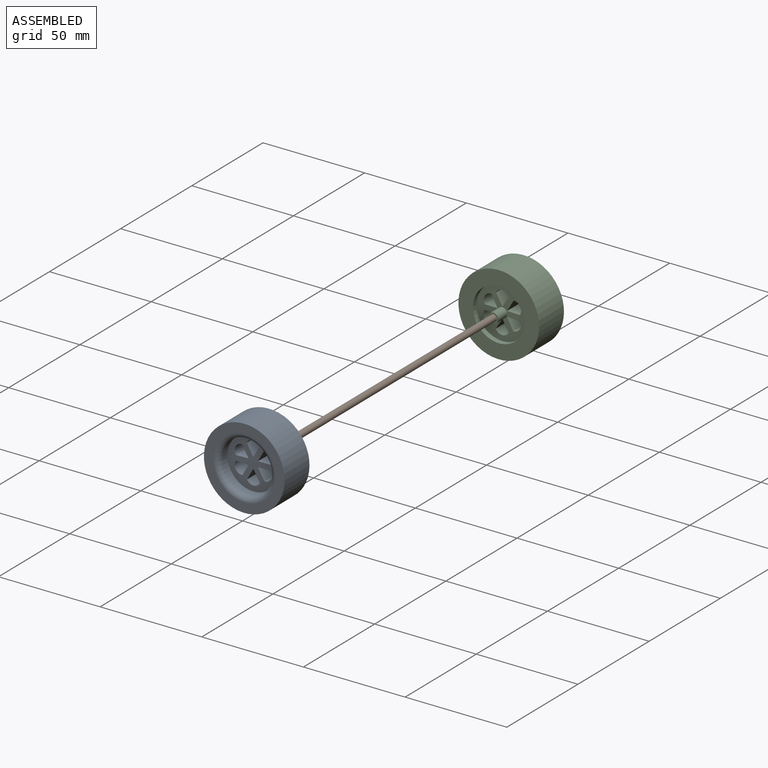
[diagram: assembled view]
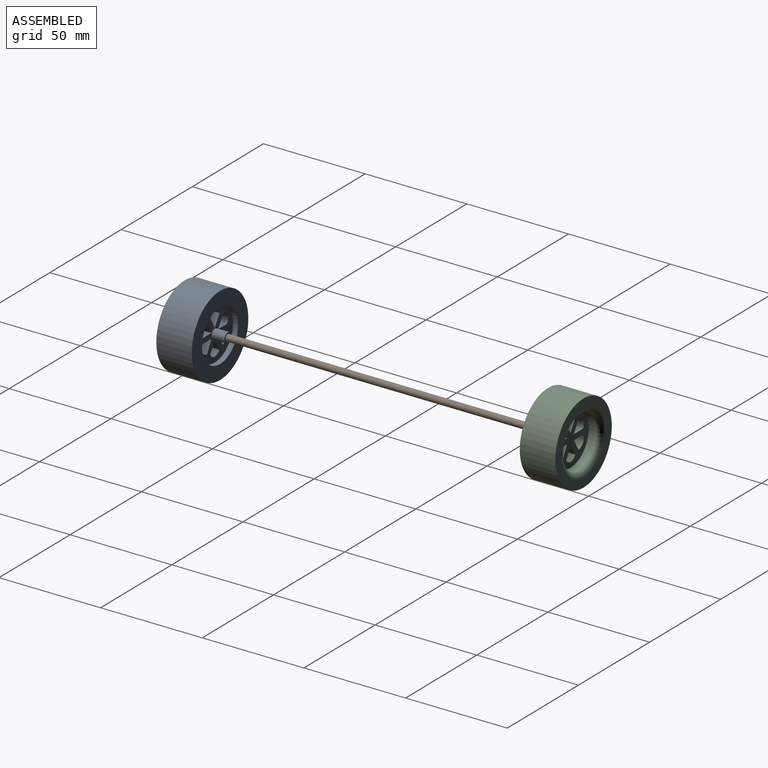
[diagram: assembled view, second angle]
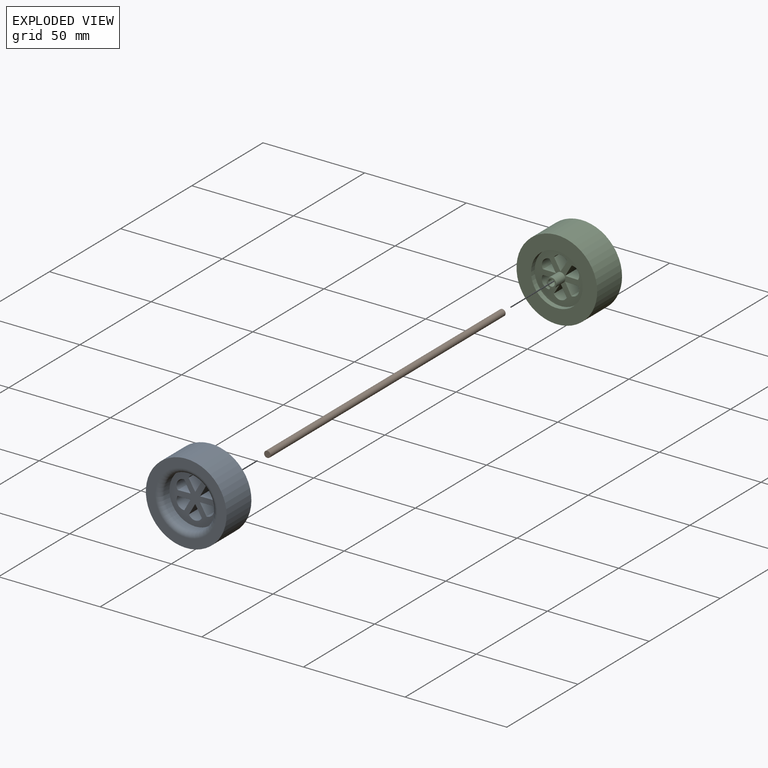
[diagram: exploded view]
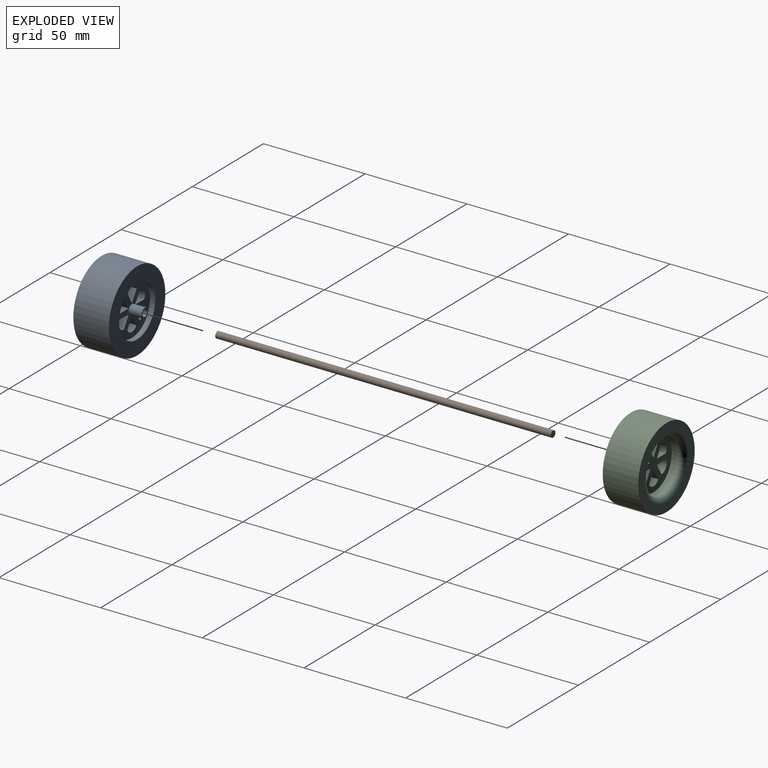
[diagram: exploded view, second angle]
ASSEMBLY  parts=3 mates=2
PART A: 30 faces, bbox 39.7x21.3x39.7 mm
  f0: plane 8.57x5.5mm, normal (-0.87,0,0.49), area 54.2mm2, adj f1,f2,f21,f24
  f1: cylinder r=3.63mm len=8.57mm, axis (0,-1,0), area 67.3mm2, adj f0,f2,f21,f24
  f2: plane 8.57x5.4mm, normal (0.85,0,0.52), area 54.2mm2, adj f0,f1,f21,f24
  f3: plane 8.57x6.32mm, normal (-0.01,0,1), area 54.2mm2, adj f4,f5,f21,f24
  f4: cylinder r=3.63mm len=8.57mm, axis (0,-1,0), area 67.3mm2, adj f3,f5,f21,f24
  f5: plane 8.57x5.55mm, normal (0.88,0,-0.48), area 54.2mm2, adj f3,f4,f21,f24
  f6: plane 8.57x5.45mm, normal (0.86,0,0.51), area 54.2mm2, adj f7,f8,f21,f24
  f7: cylinder r=3.63mm len=8.57mm, axis (0,-1,0), area 67.3mm2, adj f6,f8,f21,f24
  f8: plane 8.57x6.32mm, normal (0.02,0,-1), area 54.2mm2, adj f6,f7,f21,f24
  f9: plane 8.57x5.5mm, normal (0.87,0,-0.49), area 54.2mm2, adj f10,f11,f21,f24
  f10: cylinder r=3.63mm len=8.57mm, axis (0,-1,0), area 67.3mm2, adj f9,f11,f21,f24
  f11: plane 8.57x5.4mm, normal (-0.85,0,-0.52), area 54.2mm2, adj f9,f10,f21,f24
  f12: plane 8.57x6.32mm, normal (0.01,0,-1), area 54.2mm2, adj f13,f14,f21,f24
  f13: cylinder r=3.63mm len=8.57mm, axis (0,-1,0), area 67.3mm2, adj f12,f14,f21,f24
  f14: plane 8.57x5.55mm, normal (-0.88,0,0.48), area 54.2mm2, adj f12,f13,f21,f24
  f15: plane 8.57x5.45mm, normal (-0.86,0,-0.51), area 54.2mm2, adj f16,f17,f21,f24
  f16: cylinder r=3.63mm len=8.57mm, axis (0,-1,0), area 67.3mm2, adj f15,f17,f21,f24
  f17: plane 8.57x6.32mm, normal (-0.02,0,1), area 54.2mm2, adj f15,f16,f21,f24
  f18: cylinder r=19.84mm len=39.69mm, axis (0,1,0), area 2177.3mm2, adj f19,f20
  f19: plane 39.69x39.69mm, normal (0,-1,0), area 507.4mm2, adj f18,f23
  f20: plane 39.69x39.69mm, normal (0,1,0), area 730.4mm2, adj f18,f25
  f21: plane 25.4x25.4mm, normal (0,-1,0), area 349.4mm2, adj f0,f1,f2,f3,f4,f5,f6,f7
  f22: cylinder r=12.7mm len=25.4mm, axis (0,-1,0), area 304mm2, adj f21,f23
  f23: torus R=15.24mm, axis (0,-1,0), area 341.5mm2, adj f19,f22
  f24: plane 25.4x25.4mm, normal (0,1,0), area 331.4mm2, adj f0,f1,f2,f3,f4,f5,f6,f7
  f25: cylinder r=12.7mm len=25.4mm, axis (0,1,0), area 202.7mm2, adj f20,f24
  f26: cylinder r=2.39mm len=6.35mm, axis (0,-1,0), area 95.3mm2, adj f24,f27
  f27: plane 4.78x4.78mm, normal (0,1,0), area 9.3mm2, adj f26,f28
  f28: cylinder r=1.65mm len=5.08mm, axis (0,1,0), area 52.7mm2, adj f27,f29
  f29: plane 3.3x3.3mm, normal (0,1,0), area 8.6mm2, adj f28
PART B: 3 faces, bbox 3.2x165.1x3.2 mm
  f0: cylinder r=1.59mm len=165.1mm, axis (0,1,0), area 1646.8mm2, adj f1,f2
  f1: plane 3.18x3.18mm, normal (0,-1,0), area 7.9mm2, adj f0
  f2: plane 3.18x3.18mm, normal (0,1,0), area 7.9mm2, adj f0
PART C: same geometry as A
PLACE A t=(0,-90.01,0)mm
PLACE B at identity
PLACE C rot(axis=(1,0,0),180deg) t=(0,88.74,0)mm
MATE fastened B.f0 <-> C.f18  axis (0,1,0) through (0,82.55,0)mm
MATE fastened B.f0 <-> A.f18  axis (0,1,0) through (0,-82.55,0)mm
